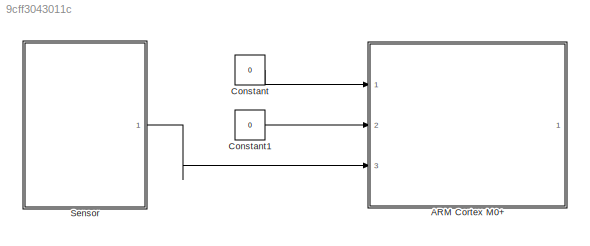
MODEL slx_9cff3043011c
KIND model
CONFIG AbsTol = auto
CONFIG EnableMultiTasking = off
CONFIG FixedStep = auto
CONFIG MaxStep = auto
CONFIG MinStep = auto
CONFIG RelTol = 1e-3
CONFIG SampleTimeConstraint = Unconstrained
CONFIG Solver = VariableStepAuto
CONFIG SolverName = VariableStepAuto
CONFIG StartTime = 0.0
CONFIG StopTime = 3
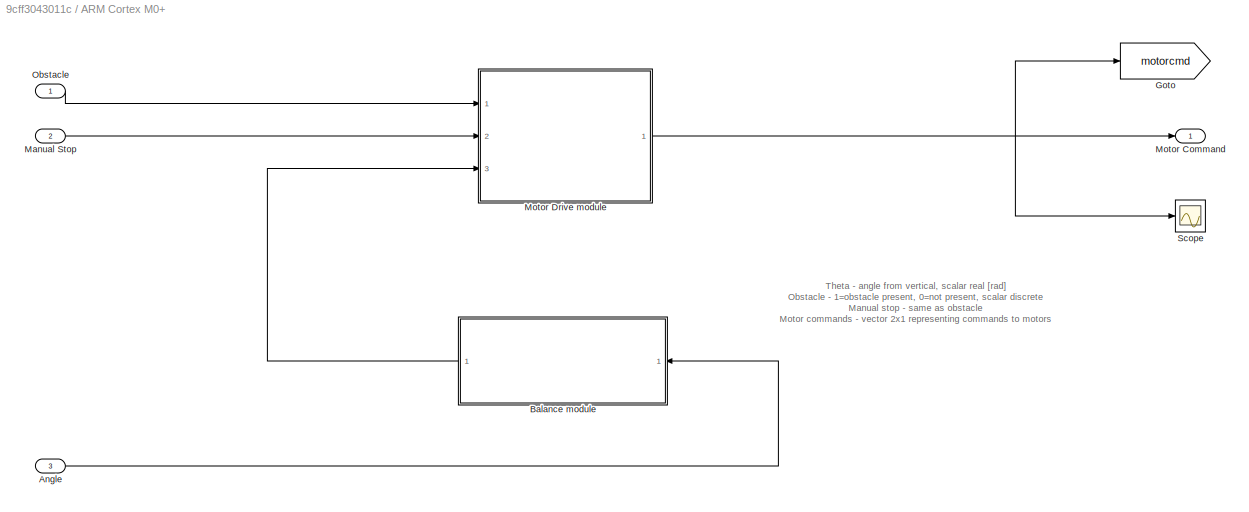
BLOCK [SubSystem] ARM Cortex M0+
  Ports = [3, 1]
  RequestExecContextInheritance = off
  Variant = off
BLOCK [Inport] ARM Cortex M0+/Angle
  IconDisplay = Port number
  Port = 3
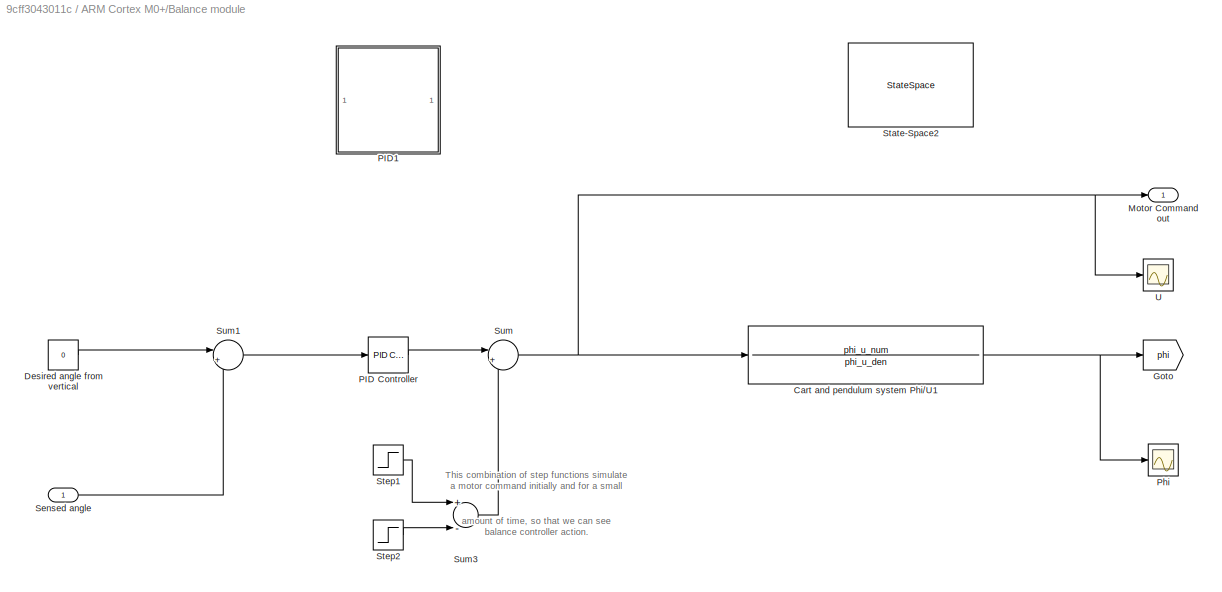
BLOCK [SubSystem] ARM Cortex M0+/Balance module
  Ports = [1, 1]
  RequestExecContextInheritance = off
  Variant = off
BLOCK [TransferFcn] ARM Cortex M0+/Balance module/Cart and pendulum system Phi//U1
  Denominator = phi_u_den
  Numerator = phi_u_num
BLOCK [Constant] ARM Cortex M0+/Balance module/Desired angle from vertical
  Value = 0
BLOCK [Goto] ARM Cortex M0+/Balance module/Goto
  GotoTag = phi
  TagVisibility = global
BLOCK [Outport] ARM Cortex M0+/Balance module/Motor Command out
  IconDisplay = Port number
BLOCK [Reference] ARM Cortex M0+/Balance module/PID Controller  REF=simulink/Continuous/PID Controller
  Ports = [1, 1]
  SourceBlock = simulink/Continuous/PID Controller
  SourceProductBaseCode = SL
  SourceProductName = Simulink
  SourceType = PID 1dof
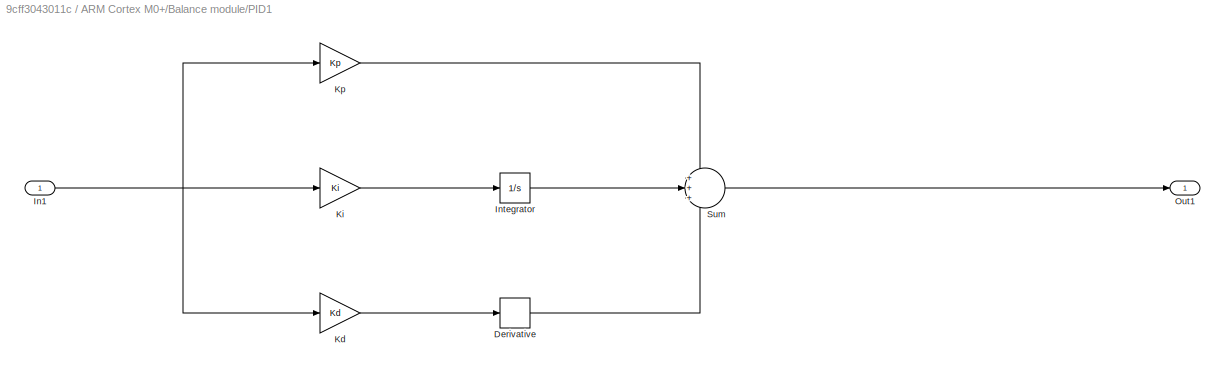
BLOCK [SubSystem] ARM Cortex M0+/Balance module/PID1
  Ports = [1, 1]
  RequestExecContextInheritance = off
  Variant = off
BLOCK [Derivative] ARM Cortex M0+/Balance module/PID1/Derivative
BLOCK [Inport] ARM Cortex M0+/Balance module/PID1/In1
  IconDisplay = Port number
BLOCK [Integrator] ARM Cortex M0+/Balance module/PID1/Integrator
  Ports = [1, 1]
BLOCK [Gain] ARM Cortex M0+/Balance module/PID1/Kd
  Gain = Kd
  OutDataTypeStr = Inherit: Inherit via internal rule
  ParamDataTypeStr = Inherit: Inherit via internal rule
  SaturateOnIntegerOverflow = off
BLOCK [Gain] ARM Cortex M0+/Balance module/PID1/Ki
  Gain = Ki
  OutDataTypeStr = Inherit: Inherit via internal rule
  ParamDataTypeStr = Inherit: Inherit via internal rule
  SaturateOnIntegerOverflow = off
BLOCK [Gain] ARM Cortex M0+/Balance module/PID1/Kp
  Gain = Kp
  OutDataTypeStr = Inherit: Inherit via internal rule
  ParamDataTypeStr = Inherit: Inherit via internal rule
  SaturateOnIntegerOverflow = off
BLOCK [Outport] ARM Cortex M0+/Balance module/PID1/Out1
  IconDisplay = Port number
BLOCK [Sum] ARM Cortex M0+/Balance module/PID1/Sum
  IconShape = round
  InputSameDT = off
  Inputs = +++
  OutDataTypeStr = Inherit: Inherit via internal rule
  Ports = [3, 1]
  SaturateOnIntegerOverflow = off
BLOCK [Scope] ARM Cortex M0+/Balance module/Phi
  NumInputPorts = 1
  Ports = [1]
  ScopeSpecificationString = Simulink.scopes.TimeScopeBlockCfg('CurrentConfiguration', extmgr.ConfigurationSet(extmgr.Configuration('Core','General UI',true),extmgr.Configuration('Core','Source UI',true),extmgr.Configuration('Sources','WiredSimulink',true,'DataLoggingVariableName','ScopeData1'),extmgr.Configuration('Visuals','Time Domain',true,'SerializedDisplays',{struct('MinYLimReal','-0.01452','MaxYLimReal','0.02938','YLab...<+1474ch>
BLOCK [Inport] ARM Cortex M0+/Balance module/Sensed angle
  IconDisplay = Port number
BLOCK [StateSpace] ARM Cortex M0+/Balance module/State-Space2
  A = A
  B = B
  C = C
  D = D
  Ports = [1, 1]
  X0 = [0 0.4 0]
BLOCK [Step] ARM Cortex M0+/Balance module/Step1
  After = 2
  SampleTime = 0
BLOCK [Step] ARM Cortex M0+/Balance module/Step2
  After = 2
  SampleTime = 0
  Time = 1.1
BLOCK [Sum] ARM Cortex M0+/Balance module/Sum
  IconShape = round
  InputSameDT = off
  Inputs = |++
  OutDataTypeStr = Inherit: Inherit via internal rule
  Ports = [2, 1]
  SaturateOnIntegerOverflow = off
BLOCK [Sum] ARM Cortex M0+/Balance module/Sum1
  IconShape = round
  InputSameDT = off
  Inputs = |+-
  OutDataTypeStr = Inherit: Inherit via internal rule
  Ports = [2, 1]
  SaturateOnIntegerOverflow = off
BLOCK [Sum] ARM Cortex M0+/Balance module/Sum3
  InputSameDT = off
  Inputs = +-
  OutDataTypeStr = Inherit: Inherit via internal rule
  Ports = [2, 1]
  SaturateOnIntegerOverflow = off
BLOCK [Scope] ARM Cortex M0+/Balance module/U
  NumInputPorts = 1
  Ports = [1]
  ScopeSpecificationString = Simulink.scopes.TimeScopeBlockCfg('CurrentConfiguration', extmgr.ConfigurationSet(extmgr.Configuration('Core','General UI',true),extmgr.Configuration('Core','Source UI',true),extmgr.Configuration('Sources','WiredSimulink',true,'DataLoggingVariableName','ScopeData1'),extmgr.Configuration('Visuals','Time Domain',true,'SerializedDisplays',{struct('MinYLimReal','-4.25317','MaxYLimReal','3.80591','YLab...<+1446ch>
BLOCK [Goto] ARM Cortex M0+/Goto
  GotoTag = motorcmd
  TagVisibility = global
BLOCK [Inport] ARM Cortex M0+/Manual Stop
  IconDisplay = Port number
  Port = 2
BLOCK [Outport] ARM Cortex M0+/Motor Command
  IconDisplay = Port number
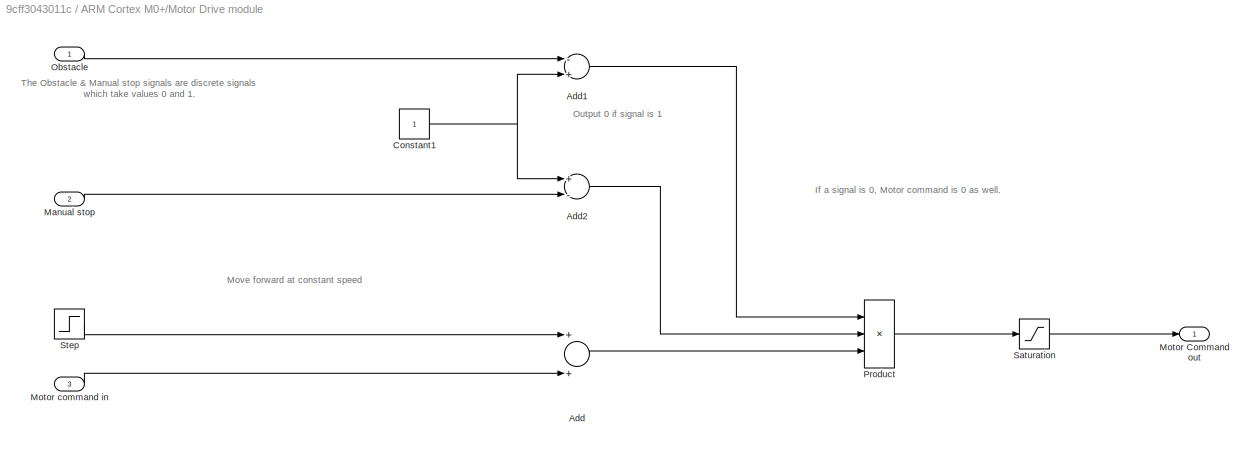
BLOCK [SubSystem] ARM Cortex M0+/Motor Drive module
  Ports = [3, 1]
  RequestExecContextInheritance = off
  Variant = off
BLOCK [Sum] ARM Cortex M0+/Motor Drive module/Add
  InputSameDT = off
  OutDataTypeStr = Inherit: Inherit via internal rule
  Ports = [2, 1]
  SaturateOnIntegerOverflow = off
BLOCK [Sum] ARM Cortex M0+/Motor Drive module/Add1
  InputSameDT = off
  Inputs = -+
  OutDataTypeStr = Inherit: Inherit via internal rule
  Ports = [2, 1]
  SaturateOnIntegerOverflow = off
BLOCK [Sum] ARM Cortex M0+/Motor Drive module/Add2
  InputSameDT = off
  Inputs = +-
  OutDataTypeStr = Inherit: Inherit via internal rule
  Ports = [2, 1]
  SaturateOnIntegerOverflow = off
BLOCK [Constant] ARM Cortex M0+/Motor Drive module/Constant1
BLOCK [Inport] ARM Cortex M0+/Motor Drive module/Manual stop
  IconDisplay = Port number
  Port = 2
BLOCK [Outport] ARM Cortex M0+/Motor Drive module/Motor Command out
  IconDisplay = Port number
BLOCK [Inport] ARM Cortex M0+/Motor Drive module/Motor command in
  IconDisplay = Port number
  Port = 3
BLOCK [Inport] ARM Cortex M0+/Motor Drive module/Obstacle
  IconDisplay = Port number
BLOCK [Product] ARM Cortex M0+/Motor Drive module/Product
  InputSameDT = off
  Inputs = 3
  OutDataTypeStr = Inherit: Inherit via internal rule
  Ports = [3, 1]
  RndMeth = Floor
  SaturateOnIntegerOverflow = off
BLOCK [Saturate] ARM Cortex M0+/Motor Drive module/Saturation
  InputPortMap = u0
  LowerLimit = -4
  Ports = [1, 1]
  UpperLimit = +4
BLOCK [Step] ARM Cortex M0+/Motor Drive module/Step
  SampleTime = 0
BLOCK [Inport] ARM Cortex M0+/Obstacle
  IconDisplay = Port number
BLOCK [Scope] ARM Cortex M0+/Scope
  NumInputPorts = 1
  Ports = [1]
  ScopeSpecificationString = Simulink.scopes.TimeScopeBlockCfg('CurrentConfiguration', extmgr.ConfigurationSet(extmgr.Configuration('Core','General UI',true),extmgr.Configuration('Core','Source UI',true),extmgr.Configuration('Sources','WiredSimulink',true,'DataLoggingVariableName','ScopeData1'),extmgr.Configuration('Visuals','Time Domain',true,'SerializedDisplays',{struct('MinYLimReal','-3.25317','MaxYLimReal','4.80591','YLab...<+1442ch>
BLOCK [Constant] Constant
  Value = 0
BLOCK [Constant] Constant1
  Value = 0
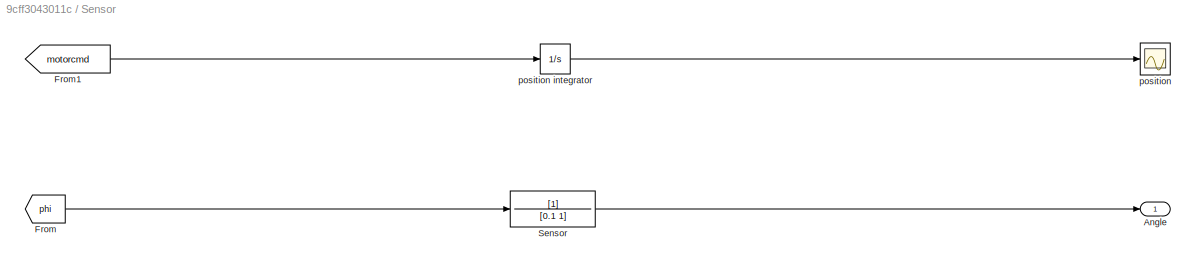
BLOCK [SubSystem] Sensor
  Ports = [0, 1]
  RequestExecContextInheritance = off
  Variant = off
BLOCK [Outport] Sensor/ Angle
  IconDisplay = Port number
BLOCK [From] Sensor/From
  GotoTag = phi
  TagVisibility = global
BLOCK [From] Sensor/From1
  GotoTag = motorcmd
  TagVisibility = global
BLOCK [TransferFcn] Sensor/Sensor
  Denominator = [0.1 1]
BLOCK [Scope] Sensor/position
  NumInputPorts = 1
  Ports = [1]
  ScopeSpecificationString = Simulink.scopes.TimeScopeBlockCfg('CurrentConfiguration', extmgr.ConfigurationSet(extmgr.Configuration('Core','General UI',true),extmgr.Configuration('Core','Source UI',true),extmgr.Configuration('Sources','WiredSimulink',true,'DataLoggingVariableName','ScopeData2'),extmgr.Configuration('Visuals','Time Domain',true,'SerializedDisplays',{struct('MinYLimReal','-0.24816','MaxYLimReal','2.23347','YLab...<+1418ch>
BLOCK [Integrator] Sensor/position integrator
  Ports = [1, 1]
ANNOTATION ARM Cortex M0+: Theta - angle from vertical, scalar real [rad] Obstacle - 1=obstacle present, 0=not present, scalar discrete Manual stop - same as obstacle Motor commands - vector 2x1 representing commands to motors
ANNOTATION ARM Cortex M0+/Balance module: This combination of step functions simulate a motor command initially and for a small amount of time, so that we can see balance controller action.
ANNOTATION ARM Cortex M0+/Motor Drive module: If a signal is 0, Motor command is 0 as well.
ANNOTATION ARM Cortex M0+/Motor Drive module: Move forward at constant speed
ANNOTATION ARM Cortex M0+/Motor Drive module: Output 0 if signal is 1
ANNOTATION ARM Cortex M0+/Motor Drive module: The Obstacle & Manual stop signals are discrete signals which take values 0 and 1.
LINE ARM Cortex M0+/Angle:1 -> ARM Cortex M0+/Balance module:1
NET ARM Cortex M0+/Balance module/Cart and pendulum system Phi//U1:1 -> ARM Cortex M0+/Balance module/Goto:1, ARM Cortex M0+/Balance module/Phi:1
LINE ARM Cortex M0+/Balance module/Desired angle from vertical:1 -> ARM Cortex M0+/Balance module/Sum1:1
LINE ARM Cortex M0+/Balance module/PID Controller:1 -> ARM Cortex M0+/Balance module/Sum:1
LINE ARM Cortex M0+/Balance module/PID1/Derivative:1 -> ARM Cortex M0+/Balance module/PID1/Sum:3
NET ARM Cortex M0+/Balance module/PID1/In1:1 -> ARM Cortex M0+/Balance module/PID1/Kd:1, ARM Cortex M0+/Balance module/PID1/Ki:1, ARM Cortex M0+/Balance module/PID1/Kp:1
LINE ARM Cortex M0+/Balance module/PID1/Integrator:1 -> ARM Cortex M0+/Balance module/PID1/Sum:2
LINE ARM Cortex M0+/Balance module/PID1/Kd:1 -> ARM Cortex M0+/Balance module/PID1/Derivative:1
LINE ARM Cortex M0+/Balance module/PID1/Ki:1 -> ARM Cortex M0+/Balance module/PID1/Integrator:1
LINE ARM Cortex M0+/Balance module/PID1/Kp:1 -> ARM Cortex M0+/Balance module/PID1/Sum:1
LINE ARM Cortex M0+/Balance module/PID1/Sum:1 -> ARM Cortex M0+/Balance module/PID1/Out1:1
LINE ARM Cortex M0+/Balance module/Sensed angle:1 -> ARM Cortex M0+/Balance module/Sum1:2
LINE ARM Cortex M0+/Balance module/Step1:1 -> ARM Cortex M0+/Balance module/Sum3:1
LINE ARM Cortex M0+/Balance module/Step2:1 -> ARM Cortex M0+/Balance module/Sum3:2
LINE ARM Cortex M0+/Balance module/Sum1:1 -> ARM Cortex M0+/Balance module/PID Controller:1
LINE ARM Cortex M0+/Balance module/Sum3:1 -> ARM Cortex M0+/Balance module/Sum:2
NET ARM Cortex M0+/Balance module/Sum:1 -> ARM Cortex M0+/Balance module/Cart and pendulum system Phi//U1:1, ARM Cortex M0+/Balance module/Motor Command out:1, ARM Cortex M0+/Balance module/U:1
LINE ARM Cortex M0+/Balance module:1 -> ARM Cortex M0+/Motor Drive module:3
LINE ARM Cortex M0+/Manual Stop:1 -> ARM Cortex M0+/Motor Drive module:2
LINE ARM Cortex M0+/Motor Drive module/Add1:1 -> ARM Cortex M0+/Motor Drive module/Product:1
LINE ARM Cortex M0+/Motor Drive module/Add2:1 -> ARM Cortex M0+/Motor Drive module/Product:2
LINE ARM Cortex M0+/Motor Drive module/Add:1 -> ARM Cortex M0+/Motor Drive module/Product:3
NET ARM Cortex M0+/Motor Drive module/Constant1:1 -> ARM Cortex M0+/Motor Drive module/Add1:2, ARM Cortex M0+/Motor Drive module/Add2:1
LINE ARM Cortex M0+/Motor Drive module/Manual stop:1 -> ARM Cortex M0+/Motor Drive module/Add2:2
LINE ARM Cortex M0+/Motor Drive module/Motor command in:1 -> ARM Cortex M0+/Motor Drive module/Add:2
LINE ARM Cortex M0+/Motor Drive module/Obstacle:1 -> ARM Cortex M0+/Motor Drive module/Add1:1
LINE ARM Cortex M0+/Motor Drive module/Product:1 -> ARM Cortex M0+/Motor Drive module/Saturation:1
LINE ARM Cortex M0+/Motor Drive module/Saturation:1 -> ARM Cortex M0+/Motor Drive module/Motor Command out:1
LINE ARM Cortex M0+/Motor Drive module/Step:1 -> ARM Cortex M0+/Motor Drive module/Add:1
NET ARM Cortex M0+/Motor Drive module:1 -> ARM Cortex M0+/Goto:1, ARM Cortex M0+/Motor Command:1, ARM Cortex M0+/Scope:1
LINE ARM Cortex M0+/Obstacle:1 -> ARM Cortex M0+/Motor Drive module:1
LINE Constant1:1 -> ARM Cortex M0+:2
LINE Constant:1 -> ARM Cortex M0+:1
LINE Sensor/From1:1 -> Sensor/position integrator:1
LINE Sensor/From:1 -> Sensor/Sensor:1
LINE Sensor/Sensor:1 -> Sensor/ Angle:1
LINE Sensor/position integrator:1 -> Sensor/position:1
LINE Sensor:1 -> ARM Cortex M0+:3
note: NET lines group one-source signal fan-out (src -> all destinations, sorted); 1:1 wires keep LINE
